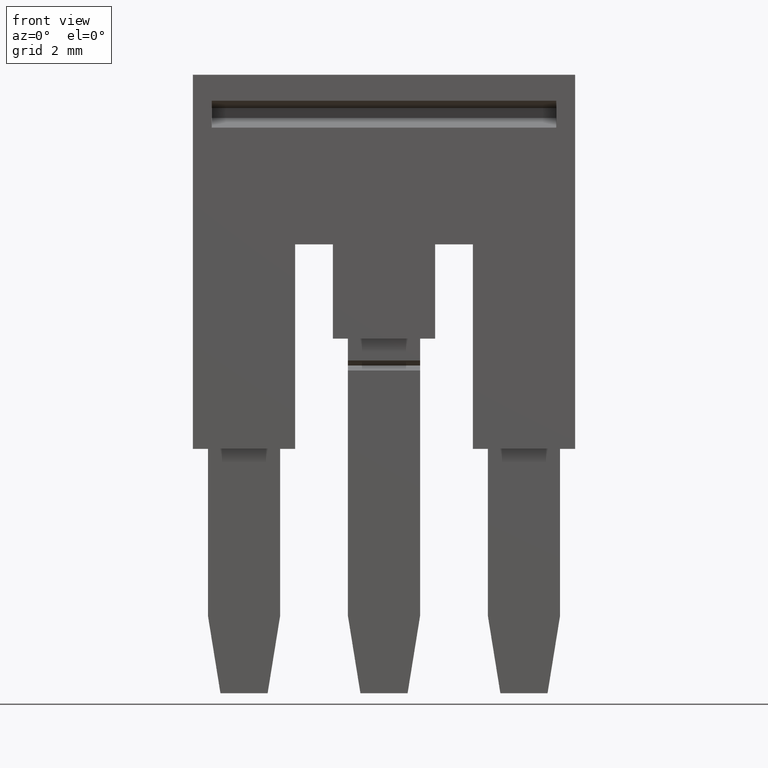
[diagram: clean part render]
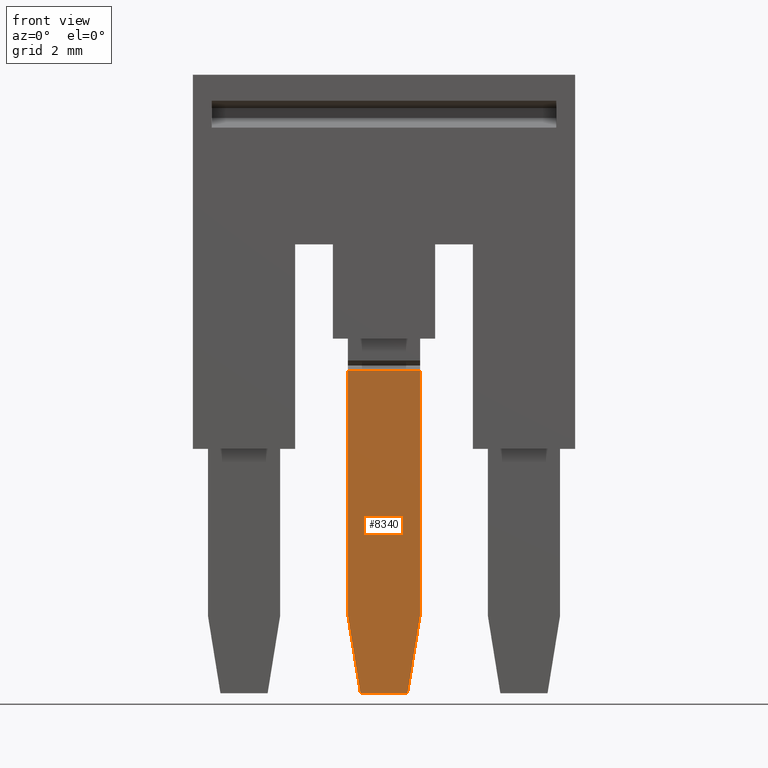
[diagram: same view with one face highlighted and labeled with its STEP entity id]
A machine part, front view. The second image highlights one B-rep face of the part: STEP entity #8340.
In plain terms, the highlighted planar face has unit normal (0, 1, 0).
Its self-contained STEP definition (entity closure, byte-faithful):
#7790=CARTESIAN_POINT('',(4.90716722169511,-27.3247789998258,
51.379551985078));
#7800=DIRECTION('',(-1.,0.,0.));
#7810=DIRECTION('',(0.,-1.,0.));
#7820=AXIS2_PLACEMENT_3D('',#7790,#7800,#7810);
#7830=PLANE('',#7820);
#7840=CARTESIAN_POINT('',(4.90716722169511,-19.8610705438444,47.074984))
;
#7850=DIRECTION('',(0.,-3.94389020636308E-16,-1.));
#7860=VECTOR('',#7850,1.);
#7870=LINE('',#7840,#7860);
#7880=CARTESIAN_POINT('',(4.90716722169511,-19.8610705438444,
52.6000000009616));
#7890=VERTEX_POINT('',#7880);
#7900=CARTESIAN_POINT('',(4.90716722169511,-19.8610705438444,
49.9200000009627));
#7910=VERTEX_POINT('',#7900);
#7920=EDGE_CURVE('',#7890,#7910,#7870,.T.);
#7930=ORIENTED_EDGE('',*,*,#7920,.F.);
#7940=CARTESIAN_POINT('',(4.90716722169511,-12.305124,49.9200000009627))
;
#7950=DIRECTION('',(0.,-1.,-9.11930314421364E-17));
#7960=VECTOR('',#7950,1.);
#7970=LINE('',#7940,#7960);
#7980=CARTESIAN_POINT('',(4.90716722169511,-28.9807420624724,
49.9200000009627));
#7990=VERTEX_POINT('',#7980);
#8000=EDGE_CURVE('',#7910,#7990,#7970,.T.);
#8010=ORIENTED_EDGE('',*,*,#8000,.F.);
#8020=CARTESIAN_POINT('',(4.90716722169511,-12.005123999997,
47.1795979230254));
#8030=DIRECTION('',(0.,0.987219178105449,-0.159368423411924));
#8040=VECTOR('',#8030,1.);
#8050=LINE('',#8020,#8040);
#8060=CARTESIAN_POINT('',(4.90716722169511,-31.8500000022926,
50.3831890519583));
#8070=VERTEX_POINT('',#8060);
#8080=EDGE_CURVE('',#8070,#7990,#8050,.T.);
#8090=ORIENTED_EDGE('',*,*,#8080,.T.);
#8100=CARTESIAN_POINT('',(4.90716722169511,-31.8500000022922,47.074984))
;
#8110=DIRECTION('',(0.,-1.44960956186225E-13,1.));
#8120=VECTOR('',#8110,1.);
#8130=LINE('',#8100,#8120);
#8140=CARTESIAN_POINT('',(4.90716722169511,-31.8500000022929,
52.1368109499659));
#8150=VERTEX_POINT('',#8140);
#8160=EDGE_CURVE('',#8070,#8150,#8130,.T.);
#8170=ORIENTED_EDGE('',*,*,#8160,.F.);
#8180=CARTESIAN_POINT('',(4.90716722169511,-12.005123999997,
55.3404020788988));
#8190=DIRECTION('',(0.,-0.987219178105449,-0.159368423411924));
#8200=VECTOR('',#8190,1.);
#8210=LINE('',#8180,#8200);
#8220=CARTESIAN_POINT('',(4.90716722169511,-28.9807420624722,
52.6000000009616));
#8230=VERTEX_POINT('',#8220);
#8240=EDGE_CURVE('',#8230,#8150,#8210,.T.);
#8250=ORIENTED_EDGE('',*,*,#8240,.T.);
#8260=CARTESIAN_POINT('',(4.90716722169511,-12.005123999997,
52.6000000009616));
#8270=DIRECTION('',(0.,-1.,-2.3789721411555E-16));
#8280=VECTOR('',#8270,1.);
#8290=LINE('',#8260,#8280);
#8300=EDGE_CURVE('',#7890,#8230,#8290,.T.);
#8310=ORIENTED_EDGE('',*,*,#8300,.T.);
#8320=EDGE_LOOP('',(#8310,#8250,#8170,#8090,#8010,#7930));
#8330=FACE_OUTER_BOUND('',#8320,.T.);
#8340=ADVANCED_FACE('',(#8330),#7830,.F.);